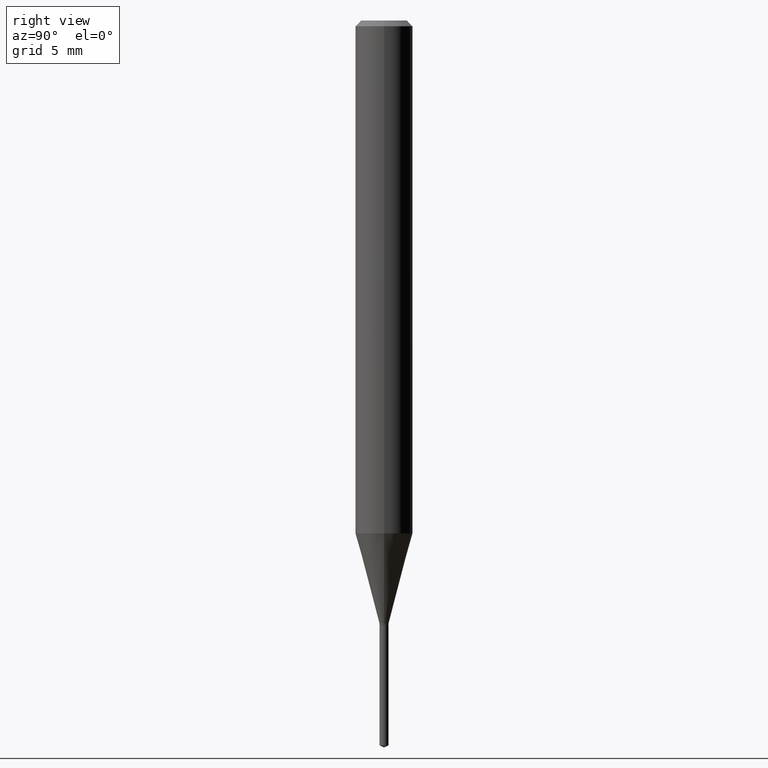
[diagram: clean part render]
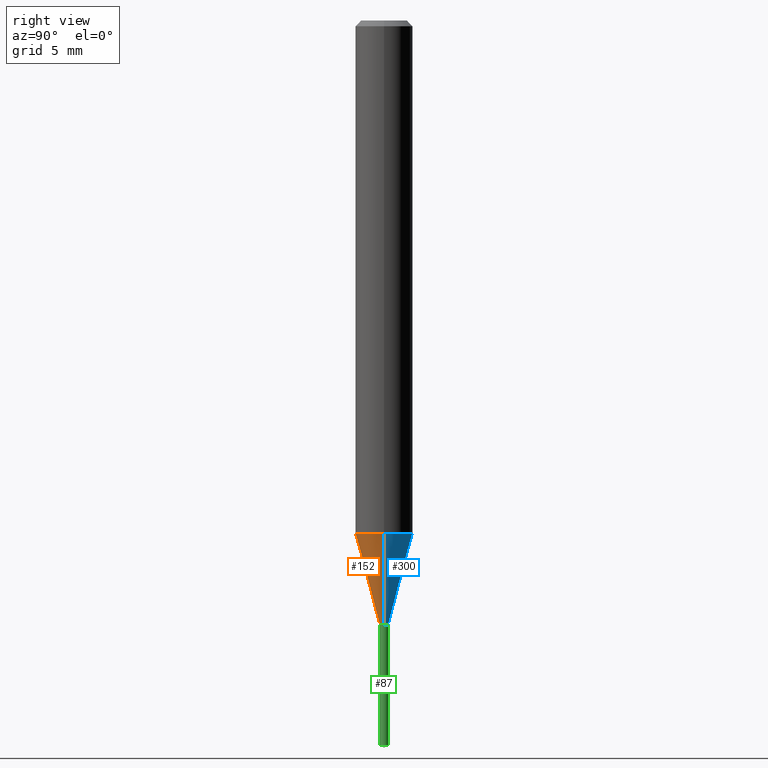
[diagram: same view with three faces highlighted in distinct colors, each labeled with its STEP entity id]
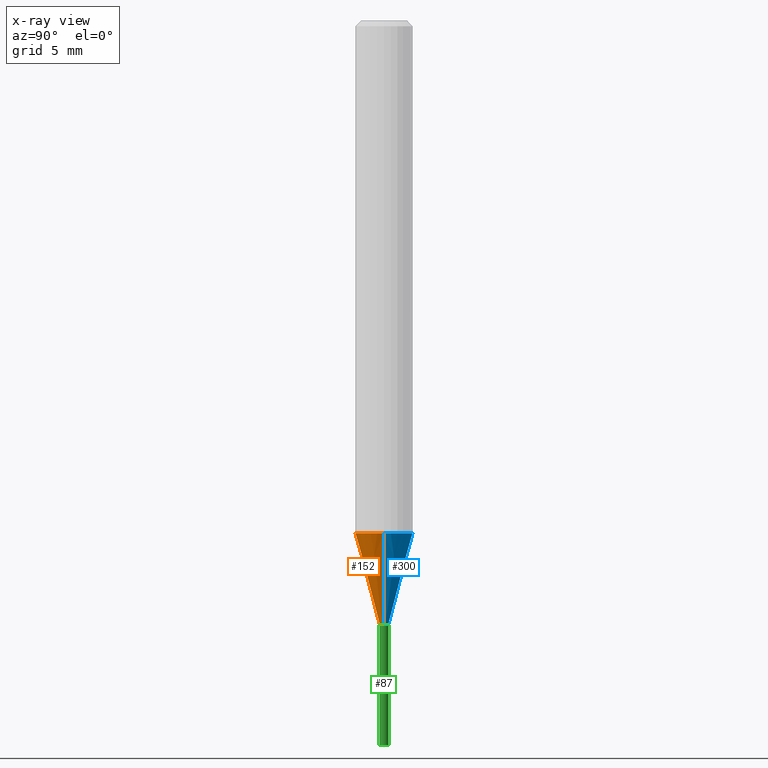
[diagram: x-ray of the same camera — body ghosted, the three highlighted faces saturated]
A machine part, right view with three faces highlighted in distinct colors.
The next image is the same camera in x-ray (body ghosted, the three faces saturated) — at least one of them is partly hidden behind the body in this view.
Their STEP definitions:

[orange] entity #152 — the highlighted conical surface has half-angle 15 deg.
#5 = CARTESIAN_POINT ( 'NONE',  ( -0.009249999999999999542, -4.272265786387857456E-15, -1.241299999999999848 ) ) ;
#24 = AXIS2_PLACEMENT_3D ( 'NONE', #191, #146, #370 ) ;
#25 = DIRECTION ( 'NONE',  ( -2.445468806185136597E-29, 3.491481338843145583E-15, 1.000000000000000000 ) ) ;
#26 = DIRECTION ( 'NONE',  ( -0.2588190451025211836, 5.211531920934547886E-15, 0.9659258262890679791 ) ) ;
#36 = DIRECTION ( 'NONE',  ( 1.000000000000000000, -6.982962677686254089E-15, 0.000000000000000000 ) ) ;
#63 = VERTEX_POINT ( 'NONE', #205 ) ;
#66 = VECTOR ( 'NONE', #411, 39.37007874015748854 ) ;
#106 = DIRECTION ( 'NONE',  ( 1.000000000000000000, -6.982962677686264344E-15, 0.000000000000000000 ) ) ;
#134 = CONICAL_SURFACE ( 'NONE', #414, 0.009249999999999999542, 0.2617993877991499074 ) ;
#141 = AXIS2_PLACEMENT_3D ( 'NONE', #239, #404, #106 ) ;
#146 = DIRECTION ( 'NONE',  ( -2.445468806185136597E-29, 3.491481338843145583E-15, 1.000000000000000000 ) ) ;
#152 = ADVANCED_FACE ( 'NONE', ( #261 ), #134, .T. ) ;
#153 = VERTEX_POINT ( 'NONE', #178 ) ;
#159 = ORIENTED_EDGE ( 'NONE', *, *, #250, .F. ) ;
#178 = CARTESIAN_POINT ( 'NONE',  ( -0.05905000000000013710, -3.265487090077642716E-15, -1.055443869783069699 ) ) ;
#183 = EDGE_CURVE ( 'NONE', #63, #313, #333, .T. ) ;
#191 = CARTESIAN_POINT ( 'NONE',  ( 3.035560429117610036E-29, -4.333975785905995943E-15, -1.241299999999999848 ) ) ;
#205 = CARTESIAN_POINT ( 'NONE',  ( 0.009249999999999999542, -4.398568190674593941E-15, -1.241299999999999848 ) ) ;
#218 = CARTESIAN_POINT ( 'NONE',  ( 3.035560429117610036E-29, -4.333975785905995943E-15, -1.241299999999999848 ) ) ;
#239 = CARTESIAN_POINT ( 'NONE',  ( 2.581055060233824275E-29, -3.685062575543982998E-15, -1.055443869783069699 ) ) ;
#250 = EDGE_CURVE ( 'NONE', #153, #313, #359, .T. ) ;
#259 = CARTESIAN_POINT ( 'NONE',  ( 0.009249999999999999542, -4.398568190674593941E-15, -1.241299999999999848 ) ) ;
#261 = FACE_OUTER_BOUND ( 'NONE', #307, .T. ) ;
#271 = VECTOR ( 'NONE', #26, 39.37007874015748854 ) ;
#276 = CARTESIAN_POINT ( 'NONE',  ( 0.05905000000000013710, -4.097406521661357129E-15, -1.055443869783069699 ) ) ;
#307 = EDGE_LOOP ( 'NONE', ( #309, #341, #422, #159 ) ) ;
#309 = ORIENTED_EDGE ( 'NONE', *, *, #315, .F. ) ;
#313 = VERTEX_POINT ( 'NONE', #276 ) ;
#315 = EDGE_CURVE ( 'NONE', #460, #153, #368, .T. ) ;
#331 = CARTESIAN_POINT ( 'NONE',  ( -0.009249999999999999542, -4.268250582848186814E-15, -1.241299999999999848 ) ) ;
#333 = LINE ( 'NONE', #259, #66 ) ;
#341 = ORIENTED_EDGE ( 'NONE', *, *, #435, .T. ) ;
#359 = CIRCLE ( 'NONE', #141, 0.05905000000000013710 ) ;
#368 = LINE ( 'NONE', #331, #271 ) ;
#370 = DIRECTION ( 'NONE',  ( 1.000000000000000000, -6.982962677686254089E-15, 0.000000000000000000 ) ) ;
#374 = CIRCLE ( 'NONE', #24, 0.009249999999999999542 ) ;
#404 = DIRECTION ( 'NONE',  ( -2.445468806185136597E-29, 3.491481338843145583E-15, 1.000000000000000000 ) ) ;
#411 = DIRECTION ( 'NONE',  ( 0.2588190451025211836, 1.565188264969622559E-15, 0.9659258262890679791 ) ) ;
#414 = AXIS2_PLACEMENT_3D ( 'NONE', #218, #25, #36 ) ;
#422 = ORIENTED_EDGE ( 'NONE', *, *, #183, .T. ) ;
#435 = EDGE_CURVE ( 'NONE', #460, #63, #374, .T. ) ;
#460 = VERTEX_POINT ( 'NONE', #5 ) ;

[blue] entity #300 — the highlighted conical surface has half-angle 15 deg.
#2 = AXIS2_PLACEMENT_3D ( 'NONE', #254, #369, #262 ) ;
#5 = CARTESIAN_POINT ( 'NONE',  ( -0.009249999999999999542, -4.272265786387857456E-15, -1.241299999999999848 ) ) ;
#11 = AXIS2_PLACEMENT_3D ( 'NONE', #163, #364, #138 ) ;
#21 = ORIENTED_EDGE ( 'NONE', *, *, #410, .F. ) ;
#26 = DIRECTION ( 'NONE',  ( -0.2588190451025211836, 5.211531920934547886E-15, 0.9659258262890679791 ) ) ;
#63 = VERTEX_POINT ( 'NONE', #205 ) ;
#66 = VECTOR ( 'NONE', #411, 39.37007874015748854 ) ;
#110 = EDGE_CURVE ( 'NONE', #63, #460, #215, .T. ) ;
#138 = DIRECTION ( 'NONE',  ( 1.000000000000000000, -6.982962677686264344E-15, 0.000000000000000000 ) ) ;
#153 = VERTEX_POINT ( 'NONE', #178 ) ;
#163 = CARTESIAN_POINT ( 'NONE',  ( 2.581055060233824275E-29, -3.685062575543982998E-15, -1.055443869783069699 ) ) ;
#178 = CARTESIAN_POINT ( 'NONE',  ( -0.05905000000000013710, -3.265487090077642716E-15, -1.055443869783069699 ) ) ;
#183 = EDGE_CURVE ( 'NONE', #63, #313, #333, .T. ) ;
#205 = CARTESIAN_POINT ( 'NONE',  ( 0.009249999999999999542, -4.398568190674593941E-15, -1.241299999999999848 ) ) ;
#215 = CIRCLE ( 'NONE', #2, 0.009249999999999999542 ) ;
#254 = CARTESIAN_POINT ( 'NONE',  ( 3.035560429117610036E-29, -4.333975785905995943E-15, -1.241299999999999848 ) ) ;
#256 = AXIS2_PLACEMENT_3D ( 'NONE', #294, #282, #468 ) ;
#259 = CARTESIAN_POINT ( 'NONE',  ( 0.009249999999999999542, -4.398568190674593941E-15, -1.241299999999999848 ) ) ;
#262 = DIRECTION ( 'NONE',  ( 1.000000000000000000, -6.982962677686254089E-15, 0.000000000000000000 ) ) ;
#271 = VECTOR ( 'NONE', #26, 39.37007874015748854 ) ;
#273 = ORIENTED_EDGE ( 'NONE', *, *, #183, .F. ) ;
#276 = CARTESIAN_POINT ( 'NONE',  ( 0.05905000000000013710, -4.097406521661357129E-15, -1.055443869783069699 ) ) ;
#282 = DIRECTION ( 'NONE',  ( -2.445468806185136597E-29, 3.491481338843145583E-15, 1.000000000000000000 ) ) ;
#291 = FACE_OUTER_BOUND ( 'NONE', #325, .T. ) ;
#294 = CARTESIAN_POINT ( 'NONE',  ( 3.035560429117610036E-29, -4.333975785905995943E-15, -1.241299999999999848 ) ) ;
#300 = ADVANCED_FACE ( 'NONE', ( #291 ), #457, .T. ) ;
#304 = CIRCLE ( 'NONE', #11, 0.05905000000000013710 ) ;
#313 = VERTEX_POINT ( 'NONE', #276 ) ;
#315 = EDGE_CURVE ( 'NONE', #460, #153, #368, .T. ) ;
#325 = EDGE_LOOP ( 'NONE', ( #326, #347, #21, #273 ) ) ;
#326 = ORIENTED_EDGE ( 'NONE', *, *, #110, .T. ) ;
#331 = CARTESIAN_POINT ( 'NONE',  ( -0.009249999999999999542, -4.268250582848186814E-15, -1.241299999999999848 ) ) ;
#333 = LINE ( 'NONE', #259, #66 ) ;
#347 = ORIENTED_EDGE ( 'NONE', *, *, #315, .T. ) ;
#364 = DIRECTION ( 'NONE',  ( -2.445468806185136597E-29, 3.491481338843145583E-15, 1.000000000000000000 ) ) ;
#368 = LINE ( 'NONE', #331, #271 ) ;
#369 = DIRECTION ( 'NONE',  ( -2.445468806185136597E-29, 3.491481338843145583E-15, 1.000000000000000000 ) ) ;
#410 = EDGE_CURVE ( 'NONE', #313, #153, #304, .T. ) ;
#411 = DIRECTION ( 'NONE',  ( 0.2588190451025211836, 1.565188264969622559E-15, 0.9659258262890679791 ) ) ;
#457 = CONICAL_SURFACE ( 'NONE', #256, 0.009249999999999999542, 0.2617993877991499074 ) ;
#460 = VERTEX_POINT ( 'NONE', #5 ) ;
#468 = DIRECTION ( 'NONE',  ( 1.000000000000000000, -6.982962677686254089E-15, 0.000000000000000000 ) ) ;

[green] entity #87 — the highlighted cylindrical surface (edge-blend (fillet) strip) has radius 0.2349 mm, axis along (-0, 0, 1).
#3 = AXIS2_PLACEMENT_3D ( 'NONE', #228, #41, #56 ) ;
#4 = EDGE_LOOP ( 'NONE', ( #162, #345, #50, #418 ) ) ;
#10 = VERTEX_POINT ( 'NONE', #476 ) ;
#12 = DIRECTION ( 'NONE',  ( -2.445453018118844278E-29, 3.491503948252676363E-15, 1.000000000000000000 ) ) ;
#41 = DIRECTION ( 'NONE',  ( -2.445453018118844559E-29, 3.491503948252676758E-15, 1.000000000000000000 ) ) ;
#42 = VECTOR ( 'NONE', #12, 39.37007874015748143 ) ;
#44 = EDGE_CURVE ( 'NONE', #237, #91, #255, .T. ) ;
#50 = ORIENTED_EDGE ( 'NONE', *, *, #242, .F. ) ;
#56 = DIRECTION ( 'NONE',  ( -6.982962677686266711E-15, -1.000000000000000000, 0.000000000000000000 ) ) ;
#71 = CARTESIAN_POINT ( 'NONE',  ( -6.459240476856754120E-17, -0.009250000000004345024, -1.244099999999999984 ) ) ;
#74 = LINE ( 'NONE', #443, #238 ) ;
#87 = ADVANCED_FACE ( 'NONE', ( #440 ), #100, .T. ) ;
#90 = CIRCLE ( 'NONE', #3, 0.009249999999999999542 ) ;
#91 = VERTEX_POINT ( 'NONE', #148 ) ;
#100 = CYLINDRICAL_SURFACE ( 'NONE', #158, 0.009249999999999999542 ) ;
#102 = CARTESIAN_POINT ( 'NONE',  ( 3.042407741774928155E-29, -4.343751933654757151E-15, -1.244099999999999984 ) ) ;
#117 = EDGE_CURVE ( 'NONE', #91, #249, #74, .T. ) ;
#130 = DIRECTION ( 'NONE',  ( -6.982962677686265133E-15, -1.000000000000000000, 0.000000000000000000 ) ) ;
#137 = CARTESIAN_POINT ( 'NONE',  ( 3.648113817743311511E-29, -5.208550864591106219E-15, -1.491786654162066128 ) ) ;
#148 = CARTESIAN_POINT ( 'NONE',  ( 6.572520305784574876E-17, 0.009249999999994791902, -1.491786654162066128 ) ) ;
#158 = AXIS2_PLACEMENT_3D ( 'NONE', #102, #290, #371 ) ;
#162 = ORIENTED_EDGE ( 'NONE', *, *, #44, .T. ) ;
#228 = CARTESIAN_POINT ( 'NONE',  ( 3.042407741774928155E-29, -4.343751933654757151E-15, -1.244099999999999984 ) ) ;
#237 = VERTEX_POINT ( 'NONE', #454 ) ;
#238 = VECTOR ( 'NONE', #295, 39.37007874015748143 ) ;
#242 = EDGE_CURVE ( 'NONE', #10, #249, #90, .T. ) ;
#248 = DIRECTION ( 'NONE',  ( -2.445453018118844559E-29, 3.491503948252676758E-15, 1.000000000000000000 ) ) ;
#249 = VERTEX_POINT ( 'NONE', #319 ) ;
#255 = CIRCLE ( 'NONE', #270, 0.009250000000000001277 ) ;
#270 = AXIS2_PLACEMENT_3D ( 'NONE', #137, #248, #130 ) ;
#290 = DIRECTION ( 'NONE',  ( -2.445453018118844559E-29, 3.491503948252676758E-15, 1.000000000000000000 ) ) ;
#295 = DIRECTION ( 'NONE',  ( -2.445453018118844278E-29, 3.491503948252676363E-15, 1.000000000000000000 ) ) ;
#319 = CARTESIAN_POINT ( 'NONE',  ( 6.572520305784577341E-17, 0.009249999999995654060, -1.244099999999999984 ) ) ;
#345 = ORIENTED_EDGE ( 'NONE', *, *, #117, .T. ) ;
#371 = DIRECTION ( 'NONE',  ( -6.982962677686266711E-15, -1.000000000000000000, 0.000000000000000000 ) ) ;
#416 = EDGE_CURVE ( 'NONE', #237, #10, #447, .T. ) ;
#418 = ORIENTED_EDGE ( 'NONE', *, *, #416, .F. ) ;
#440 = FACE_OUTER_BOUND ( 'NONE', #4, .T. ) ;
#443 = CARTESIAN_POINT ( 'NONE',  ( 6.572520305783968439E-17, 0.009249999999995655794, -1.244099999999999984 ) ) ;
#447 = LINE ( 'NONE', #71, #42 ) ;
#454 = CARTESIAN_POINT ( 'NONE',  ( -6.459240476856148916E-17, -0.009250000000005208917, -1.491786654162066128 ) ) ;
#476 = CARTESIAN_POINT ( 'NONE',  ( -6.459240476856754120E-17, -0.009250000000004345024, -1.244099999999999984 ) ) ;